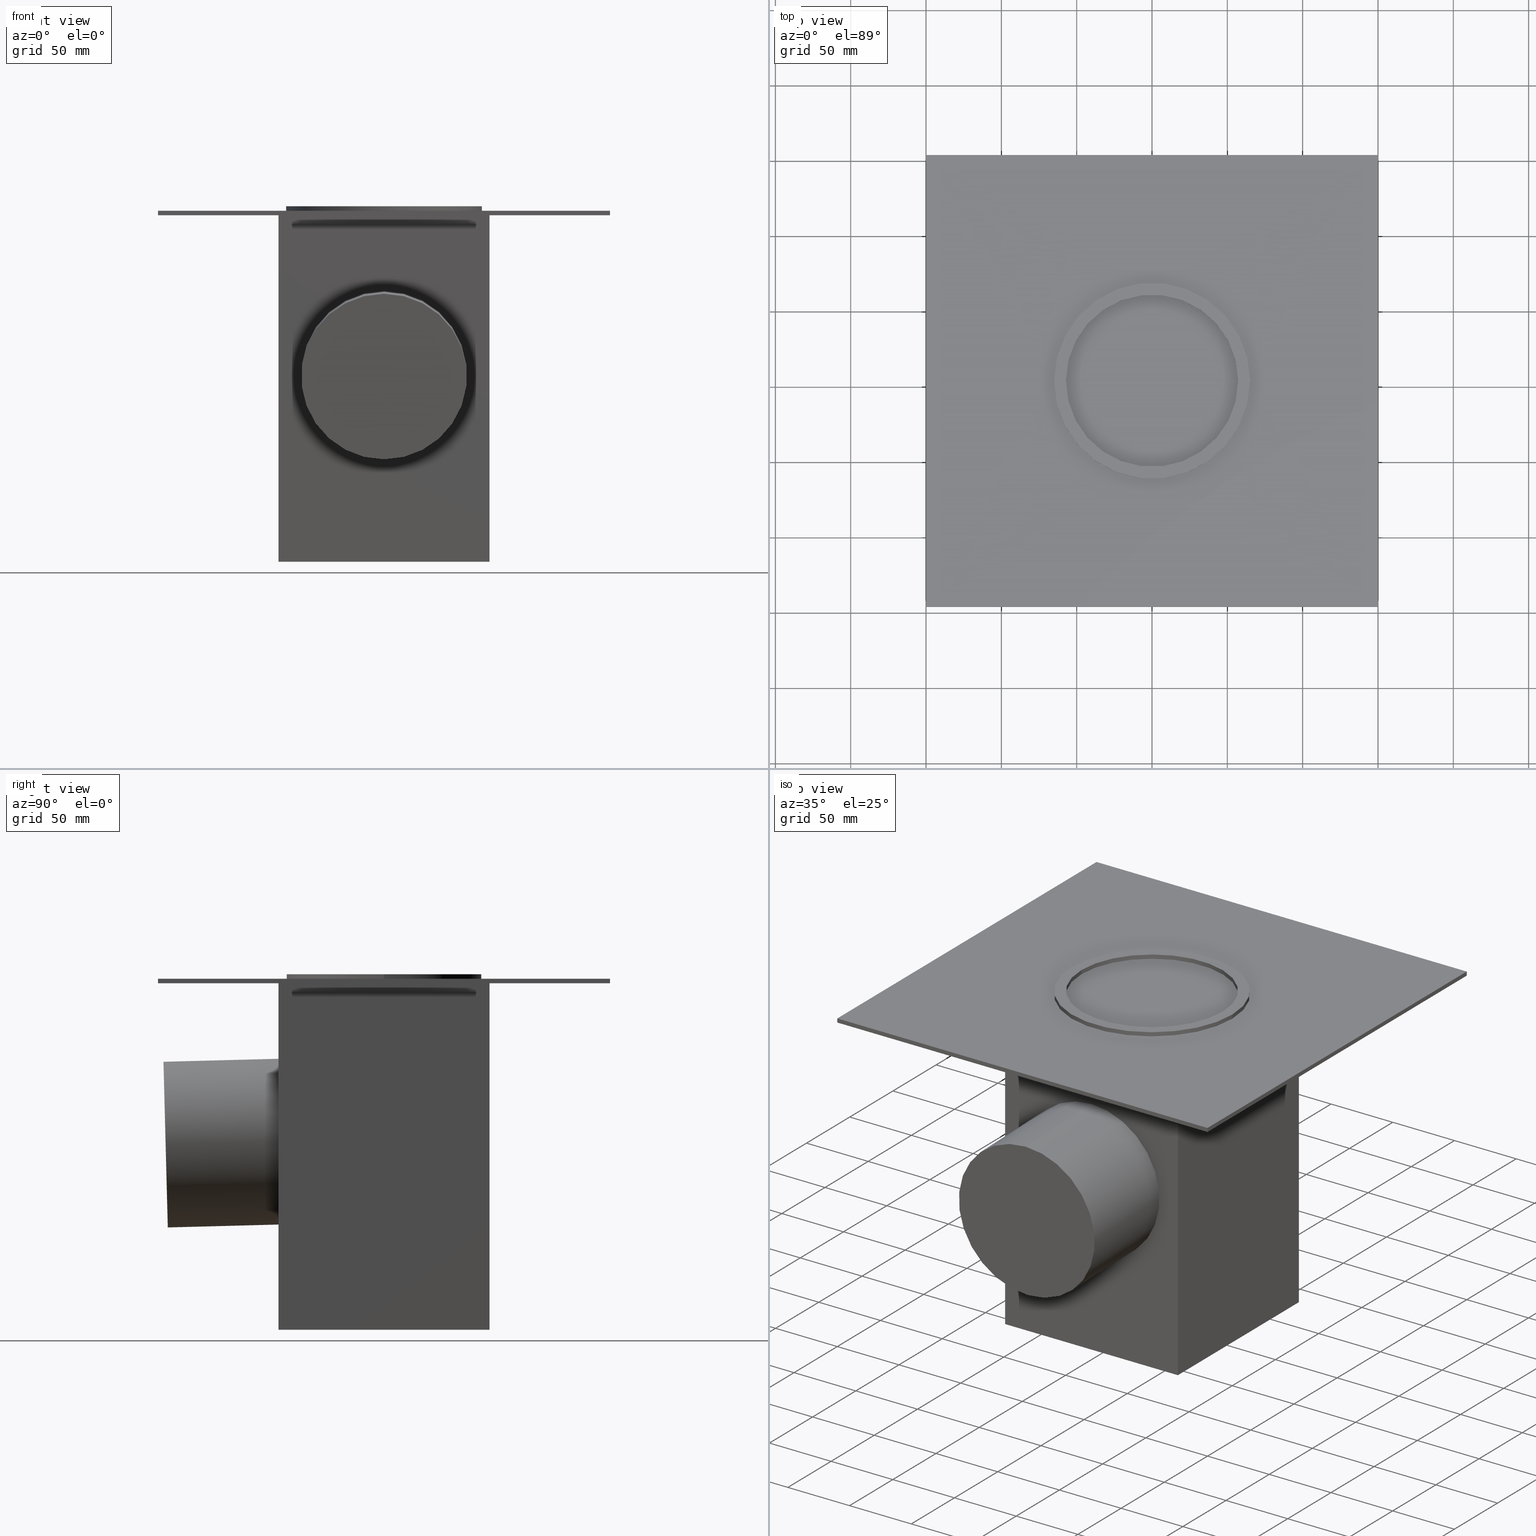
[diagram: canonical four-view strip — front | top / right | iso, engineering-drawing reading convention]
A machine part, canonical four-view strip (front | top / right | iso — engineering-drawing reading convention). The complete STEP part file that produces these views, byte-faithful:
ISO-10303-21;
HEADER;
/* Generated by software containing ST-Developer
 * from STEP Tools, Inc. (www.steptools.com) 
 */

FILE_DESCRIPTION(
/* description */ (''),
/* implementation_level */ '2;1');

FILE_NAME(
/* name */ 
'E:\\Workspace\\resitec\\Packs\\Kategorie\\Sifons zu Wannen und Rinnen
\\RS521.100.s.ipt.step',
/* time_stamp */ '2020-09-18T08:31:05+02:00',
/* author */ ('unternaa'),
/* organization */ (''),
/* preprocessor_version */ 'ST-DEVELOPER v18.1',
/* originating_system */ 'Autodesk Inventor 2020',
/* authorisation */ '');

FILE_SCHEMA (('AUTOMOTIVE_DESIGN { 1 0 10303 214 3 1 1 }'));
ENDSEC;

DATA;
#10=MECHANICAL_DESIGN_GEOMETRIC_PRESENTATION_REPRESENTATION('',(#13,#14,
#15,#16),#666);
#11=SHAPE_REPRESENTATION_RELATIONSHIP('SRR','None',#673,#12);
#12=ADVANCED_BREP_SHAPE_REPRESENTATION('',(#17,#18,#19,#20),#665);
#13=STYLED_ITEM('',(#682),#17);
#14=STYLED_ITEM('',(#682),#18);
#15=STYLED_ITEM('',(#682),#19);
#16=STYLED_ITEM('',(#682),#20);
#17=MANIFOLD_SOLID_BREP('Volumenk\X\F6rper1',#381);
#18=MANIFOLD_SOLID_BREP('Volumenk\X\F6rper2',#382);
#19=MANIFOLD_SOLID_BREP('Volumenk\X\F6rper3',#383);
#20=MANIFOLD_SOLID_BREP('Volumenk\X\F6rper4',#384);
#21=FACE_BOUND('',#70,.T.);
#22=FACE_BOUND('',#72,.T.);
#23=FACE_BOUND('',#90,.T.);
#24=FACE_BOUND('',#92,.T.);
#25=PLANE('',#416);
#26=PLANE('',#417);
#27=PLANE('',#418);
#28=PLANE('',#419);
#29=PLANE('',#420);
#30=PLANE('',#421);
#31=PLANE('',#422);
#32=PLANE('',#423);
#33=PLANE('',#430);
#34=PLANE('',#431);
#35=PLANE('',#438);
#36=PLANE('',#439);
#37=PLANE('',#440);
#38=PLANE('',#441);
#39=PLANE('',#442);
#40=PLANE('',#443);
#41=FACE_OUTER_BOUND('',#65,.T.);
#42=FACE_OUTER_BOUND('',#66,.T.);
#43=FACE_OUTER_BOUND('',#67,.T.);
#44=FACE_OUTER_BOUND('',#68,.T.);
#45=FACE_OUTER_BOUND('',#69,.T.);
#46=FACE_OUTER_BOUND('',#71,.T.);
#47=FACE_OUTER_BOUND('',#73,.T.);
#48=FACE_OUTER_BOUND('',#74,.T.);
#49=FACE_OUTER_BOUND('',#75,.T.);
#50=FACE_OUTER_BOUND('',#76,.T.);
#51=FACE_OUTER_BOUND('',#77,.T.);
#52=FACE_OUTER_BOUND('',#78,.T.);
#53=FACE_OUTER_BOUND('',#79,.T.);
#54=FACE_OUTER_BOUND('',#80,.T.);
#55=FACE_OUTER_BOUND('',#81,.T.);
#56=FACE_OUTER_BOUND('',#82,.T.);
#57=FACE_OUTER_BOUND('',#83,.T.);
#58=FACE_OUTER_BOUND('',#84,.T.);
#59=FACE_OUTER_BOUND('',#85,.T.);
#60=FACE_OUTER_BOUND('',#86,.T.);
#61=FACE_OUTER_BOUND('',#87,.T.);
#62=FACE_OUTER_BOUND('',#88,.T.);
#63=FACE_OUTER_BOUND('',#89,.T.);
#64=FACE_OUTER_BOUND('',#91,.T.);
#65=EDGE_LOOP('',(#253,#254,#255,#256));
#66=EDGE_LOOP('',(#257,#258,#259,#260));
#67=EDGE_LOOP('',(#261,#262,#263,#264));
#68=EDGE_LOOP('',(#265,#266,#267,#268));
#69=EDGE_LOOP('',(#269,#270));
#70=EDGE_LOOP('',(#271,#272));
#71=EDGE_LOOP('',(#273,#274));
#72=EDGE_LOOP('',(#275,#276));
#73=EDGE_LOOP('',(#277,#278,#279,#280));
#74=EDGE_LOOP('',(#281,#282,#283,#284));
#75=EDGE_LOOP('',(#285,#286,#287,#288));
#76=EDGE_LOOP('',(#289,#290,#291,#292));
#77=EDGE_LOOP('',(#293,#294,#295,#296));
#78=EDGE_LOOP('',(#297,#298,#299,#300));
#79=EDGE_LOOP('',(#301,#302,#303,#304));
#80=EDGE_LOOP('',(#305,#306,#307,#308));
#81=EDGE_LOOP('',(#309,#310));
#82=EDGE_LOOP('',(#311,#312));
#83=EDGE_LOOP('',(#313,#314,#315,#316));
#84=EDGE_LOOP('',(#317,#318,#319,#320));
#85=EDGE_LOOP('',(#321,#322,#323,#324));
#86=EDGE_LOOP('',(#325,#326,#327,#328));
#87=EDGE_LOOP('',(#329,#330,#331,#332));
#88=EDGE_LOOP('',(#333,#334,#335,#336));
#89=EDGE_LOOP('',(#337,#338,#339,#340));
#90=EDGE_LOOP('',(#341,#342));
#91=EDGE_LOOP('',(#343,#344,#345,#346));
#92=EDGE_LOOP('',(#347,#348));
#93=LINE('',#564,#125);
#94=LINE('',#567,#126);
#95=LINE('',#576,#127);
#96=LINE('',#579,#128);
#97=LINE('',#588,#129);
#98=LINE('',#590,#130);
#99=LINE('',#592,#131);
#100=LINE('',#593,#132);
#101=LINE('',#596,#133);
#102=LINE('',#598,#134);
#103=LINE('',#599,#135);
#104=LINE('',#602,#136);
#105=LINE('',#604,#137);
#106=LINE('',#605,#138);
#107=LINE('',#607,#139);
#108=LINE('',#608,#140);
#109=LINE('',#616,#141);
#110=LINE('',#619,#142);
#111=LINE('',#630,#143);
#112=LINE('',#633,#144);
#113=LINE('',#640,#145);
#114=LINE('',#642,#146);
#115=LINE('',#644,#147);
#116=LINE('',#645,#148);
#117=LINE('',#648,#149);
#118=LINE('',#650,#150);
#119=LINE('',#651,#151);
#120=LINE('',#654,#152);
#121=LINE('',#656,#153);
#122=LINE('',#657,#154);
#123=LINE('',#659,#155);
#124=LINE('',#660,#156);
#125=VECTOR('',#450,304.8);
#126=VECTOR('',#453,304.8);
#127=VECTOR('',#464,304.8);
#128=VECTOR('',#467,304.8);
#129=VECTOR('',#480,304.8);
#130=VECTOR('',#481,304.8);
#131=VECTOR('',#482,304.8);
#132=VECTOR('',#483,304.8);
#133=VECTOR('',#486,304.8);
#134=VECTOR('',#487,304.8);
#135=VECTOR('',#488,304.8);
#136=VECTOR('',#491,304.8);
#137=VECTOR('',#492,304.8);
#138=VECTOR('',#493,304.8);
#139=VECTOR('',#496,304.8);
#140=VECTOR('',#497,304.8);
#141=VECTOR('',#506,304.8);
#142=VECTOR('',#509,304.8);
#143=VECTOR('',#524,304.8);
#144=VECTOR('',#527,304.8);
#145=VECTOR('',#536,304.8);
#146=VECTOR('',#537,304.8);
#147=VECTOR('',#538,304.8);
#148=VECTOR('',#539,304.8);
#149=VECTOR('',#542,304.8);
#150=VECTOR('',#543,304.8);
#151=VECTOR('',#544,304.8);
#152=VECTOR('',#547,304.8);
#153=VECTOR('',#548,304.8);
#154=VECTOR('',#549,304.8);
#155=VECTOR('',#552,304.8);
#156=VECTOR('',#553,304.8);
#157=CIRCLE('',#405,57.15);
#158=CIRCLE('',#406,57.15);
#159=CIRCLE('',#408,57.15);
#160=CIRCLE('',#409,57.15);
#161=CIRCLE('',#411,65.);
#162=CIRCLE('',#412,65.);
#163=CIRCLE('',#414,65.);
#164=CIRCLE('',#415,65.);
#165=CIRCLE('',#425,55.);
#166=CIRCLE('',#426,55.);
#167=CIRCLE('',#428,55.);
#168=CIRCLE('',#429,55.);
#169=CIRCLE('',#433,64.5);
#170=CIRCLE('',#434,64.5);
#171=CIRCLE('',#436,64.5);
#172=CIRCLE('',#437,64.5);
#173=VERTEX_POINT('',#560);
#174=VERTEX_POINT('',#561);
#175=VERTEX_POINT('',#563);
#176=VERTEX_POINT('',#565);
#177=VERTEX_POINT('',#572);
#178=VERTEX_POINT('',#573);
#179=VERTEX_POINT('',#575);
#180=VERTEX_POINT('',#577);
#181=VERTEX_POINT('',#586);
#182=VERTEX_POINT('',#587);
#183=VERTEX_POINT('',#589);
#184=VERTEX_POINT('',#591);
#185=VERTEX_POINT('',#595);
#186=VERTEX_POINT('',#597);
#187=VERTEX_POINT('',#601);
#188=VERTEX_POINT('',#603);
#189=VERTEX_POINT('',#612);
#190=VERTEX_POINT('',#613);
#191=VERTEX_POINT('',#615);
#192=VERTEX_POINT('',#617);
#193=VERTEX_POINT('',#626);
#194=VERTEX_POINT('',#627);
#195=VERTEX_POINT('',#629);
#196=VERTEX_POINT('',#631);
#197=VERTEX_POINT('',#638);
#198=VERTEX_POINT('',#639);
#199=VERTEX_POINT('',#641);
#200=VERTEX_POINT('',#643);
#201=VERTEX_POINT('',#647);
#202=VERTEX_POINT('',#649);
#203=VERTEX_POINT('',#653);
#204=VERTEX_POINT('',#655);
#205=EDGE_CURVE('',#173,#174,#157,.T.);
#206=EDGE_CURVE('',#175,#173,#93,.T.);
#207=EDGE_CURVE('',#176,#175,#158,.T.);
#208=EDGE_CURVE('',#174,#176,#94,.T.);
#209=EDGE_CURVE('',#174,#173,#159,.T.);
#210=EDGE_CURVE('',#175,#176,#160,.T.);
#211=EDGE_CURVE('',#177,#178,#161,.T.);
#212=EDGE_CURVE('',#179,#177,#95,.T.);
#213=EDGE_CURVE('',#180,#179,#162,.T.);
#214=EDGE_CURVE('',#178,#180,#96,.T.);
#215=EDGE_CURVE('',#178,#177,#163,.T.);
#216=EDGE_CURVE('',#179,#180,#164,.T.);
#217=EDGE_CURVE('',#181,#182,#97,.T.);
#218=EDGE_CURVE('',#183,#181,#98,.T.);
#219=EDGE_CURVE('',#184,#183,#99,.T.);
#220=EDGE_CURVE('',#182,#184,#100,.T.);
#221=EDGE_CURVE('',#185,#181,#101,.T.);
#222=EDGE_CURVE('',#186,#185,#102,.T.);
#223=EDGE_CURVE('',#183,#186,#103,.T.);
#224=EDGE_CURVE('',#187,#185,#104,.T.);
#225=EDGE_CURVE('',#188,#187,#105,.T.);
#226=EDGE_CURVE('',#186,#188,#106,.T.);
#227=EDGE_CURVE('',#182,#187,#107,.T.);
#228=EDGE_CURVE('',#188,#184,#108,.T.);
#229=EDGE_CURVE('',#189,#190,#165,.T.);
#230=EDGE_CURVE('',#191,#189,#109,.T.);
#231=EDGE_CURVE('',#192,#191,#166,.T.);
#232=EDGE_CURVE('',#190,#192,#110,.T.);
#233=EDGE_CURVE('',#190,#189,#167,.T.);
#234=EDGE_CURVE('',#191,#192,#168,.T.);
#235=EDGE_CURVE('',#193,#194,#169,.T.);
#236=EDGE_CURVE('',#195,#193,#111,.T.);
#237=EDGE_CURVE('',#196,#195,#170,.T.);
#238=EDGE_CURVE('',#194,#196,#112,.T.);
#239=EDGE_CURVE('',#194,#193,#171,.T.);
#240=EDGE_CURVE('',#195,#196,#172,.T.);
#241=EDGE_CURVE('',#197,#198,#113,.T.);
#242=EDGE_CURVE('',#199,#197,#114,.T.);
#243=EDGE_CURVE('',#200,#199,#115,.T.);
#244=EDGE_CURVE('',#198,#200,#116,.T.);
#245=EDGE_CURVE('',#201,#197,#117,.T.);
#246=EDGE_CURVE('',#202,#201,#118,.T.);
#247=EDGE_CURVE('',#199,#202,#119,.T.);
#248=EDGE_CURVE('',#203,#201,#120,.T.);
#249=EDGE_CURVE('',#204,#203,#121,.T.);
#250=EDGE_CURVE('',#202,#204,#122,.T.);
#251=EDGE_CURVE('',#198,#203,#123,.T.);
#252=EDGE_CURVE('',#204,#200,#124,.T.);
#253=ORIENTED_EDGE('',*,*,#205,.F.);
#254=ORIENTED_EDGE('',*,*,#206,.F.);
#255=ORIENTED_EDGE('',*,*,#207,.F.);
#256=ORIENTED_EDGE('',*,*,#208,.F.);
#257=ORIENTED_EDGE('',*,*,#209,.F.);
#258=ORIENTED_EDGE('',*,*,#208,.T.);
#259=ORIENTED_EDGE('',*,*,#210,.F.);
#260=ORIENTED_EDGE('',*,*,#206,.T.);
#261=ORIENTED_EDGE('',*,*,#211,.F.);
#262=ORIENTED_EDGE('',*,*,#212,.F.);
#263=ORIENTED_EDGE('',*,*,#213,.F.);
#264=ORIENTED_EDGE('',*,*,#214,.F.);
#265=ORIENTED_EDGE('',*,*,#215,.F.);
#266=ORIENTED_EDGE('',*,*,#214,.T.);
#267=ORIENTED_EDGE('',*,*,#216,.F.);
#268=ORIENTED_EDGE('',*,*,#212,.T.);
#269=ORIENTED_EDGE('',*,*,#213,.T.);
#270=ORIENTED_EDGE('',*,*,#216,.T.);
#271=ORIENTED_EDGE('',*,*,#207,.T.);
#272=ORIENTED_EDGE('',*,*,#210,.T.);
#273=ORIENTED_EDGE('',*,*,#215,.T.);
#274=ORIENTED_EDGE('',*,*,#211,.T.);
#275=ORIENTED_EDGE('',*,*,#209,.T.);
#276=ORIENTED_EDGE('',*,*,#205,.T.);
#277=ORIENTED_EDGE('',*,*,#217,.F.);
#278=ORIENTED_EDGE('',*,*,#218,.F.);
#279=ORIENTED_EDGE('',*,*,#219,.F.);
#280=ORIENTED_EDGE('',*,*,#220,.F.);
#281=ORIENTED_EDGE('',*,*,#221,.F.);
#282=ORIENTED_EDGE('',*,*,#222,.F.);
#283=ORIENTED_EDGE('',*,*,#223,.F.);
#284=ORIENTED_EDGE('',*,*,#218,.T.);
#285=ORIENTED_EDGE('',*,*,#224,.F.);
#286=ORIENTED_EDGE('',*,*,#225,.F.);
#287=ORIENTED_EDGE('',*,*,#226,.F.);
#288=ORIENTED_EDGE('',*,*,#222,.T.);
#289=ORIENTED_EDGE('',*,*,#227,.F.);
#290=ORIENTED_EDGE('',*,*,#220,.T.);
#291=ORIENTED_EDGE('',*,*,#228,.F.);
#292=ORIENTED_EDGE('',*,*,#225,.T.);
#293=ORIENTED_EDGE('',*,*,#219,.T.);
#294=ORIENTED_EDGE('',*,*,#223,.T.);
#295=ORIENTED_EDGE('',*,*,#226,.T.);
#296=ORIENTED_EDGE('',*,*,#228,.T.);
#297=ORIENTED_EDGE('',*,*,#227,.T.);
#298=ORIENTED_EDGE('',*,*,#224,.T.);
#299=ORIENTED_EDGE('',*,*,#221,.T.);
#300=ORIENTED_EDGE('',*,*,#217,.T.);
#301=ORIENTED_EDGE('',*,*,#229,.F.);
#302=ORIENTED_EDGE('',*,*,#230,.F.);
#303=ORIENTED_EDGE('',*,*,#231,.F.);
#304=ORIENTED_EDGE('',*,*,#232,.F.);
#305=ORIENTED_EDGE('',*,*,#233,.F.);
#306=ORIENTED_EDGE('',*,*,#232,.T.);
#307=ORIENTED_EDGE('',*,*,#234,.F.);
#308=ORIENTED_EDGE('',*,*,#230,.T.);
#309=ORIENTED_EDGE('',*,*,#231,.T.);
#310=ORIENTED_EDGE('',*,*,#234,.T.);
#311=ORIENTED_EDGE('',*,*,#233,.T.);
#312=ORIENTED_EDGE('',*,*,#229,.T.);
#313=ORIENTED_EDGE('',*,*,#235,.F.);
#314=ORIENTED_EDGE('',*,*,#236,.F.);
#315=ORIENTED_EDGE('',*,*,#237,.F.);
#316=ORIENTED_EDGE('',*,*,#238,.F.);
#317=ORIENTED_EDGE('',*,*,#239,.F.);
#318=ORIENTED_EDGE('',*,*,#238,.T.);
#319=ORIENTED_EDGE('',*,*,#240,.F.);
#320=ORIENTED_EDGE('',*,*,#236,.T.);
#321=ORIENTED_EDGE('',*,*,#241,.F.);
#322=ORIENTED_EDGE('',*,*,#242,.F.);
#323=ORIENTED_EDGE('',*,*,#243,.F.);
#324=ORIENTED_EDGE('',*,*,#244,.F.);
#325=ORIENTED_EDGE('',*,*,#245,.F.);
#326=ORIENTED_EDGE('',*,*,#246,.F.);
#327=ORIENTED_EDGE('',*,*,#247,.F.);
#328=ORIENTED_EDGE('',*,*,#242,.T.);
#329=ORIENTED_EDGE('',*,*,#248,.F.);
#330=ORIENTED_EDGE('',*,*,#249,.F.);
#331=ORIENTED_EDGE('',*,*,#250,.F.);
#332=ORIENTED_EDGE('',*,*,#246,.T.);
#333=ORIENTED_EDGE('',*,*,#251,.F.);
#334=ORIENTED_EDGE('',*,*,#244,.T.);
#335=ORIENTED_EDGE('',*,*,#252,.F.);
#336=ORIENTED_EDGE('',*,*,#249,.T.);
#337=ORIENTED_EDGE('',*,*,#243,.T.);
#338=ORIENTED_EDGE('',*,*,#247,.T.);
#339=ORIENTED_EDGE('',*,*,#250,.T.);
#340=ORIENTED_EDGE('',*,*,#252,.T.);
#341=ORIENTED_EDGE('',*,*,#237,.T.);
#342=ORIENTED_EDGE('',*,*,#240,.T.);
#343=ORIENTED_EDGE('',*,*,#251,.T.);
#344=ORIENTED_EDGE('',*,*,#248,.T.);
#345=ORIENTED_EDGE('',*,*,#245,.T.);
#346=ORIENTED_EDGE('',*,*,#241,.T.);
#347=ORIENTED_EDGE('',*,*,#239,.T.);
#348=ORIENTED_EDGE('',*,*,#235,.T.);
#349=CYLINDRICAL_SURFACE('',#404,57.15);
#350=CYLINDRICAL_SURFACE('',#407,57.15);
#351=CYLINDRICAL_SURFACE('',#410,65.);
#352=CYLINDRICAL_SURFACE('',#413,65.);
#353=CYLINDRICAL_SURFACE('',#424,55.);
#354=CYLINDRICAL_SURFACE('',#427,55.);
#355=CYLINDRICAL_SURFACE('',#432,64.5);
#356=CYLINDRICAL_SURFACE('',#435,64.5);
#357=ADVANCED_FACE('',(#41),#349,.F.);
#358=ADVANCED_FACE('',(#42),#350,.F.);
#359=ADVANCED_FACE('',(#43),#351,.T.);
#360=ADVANCED_FACE('',(#44),#352,.T.);
#361=ADVANCED_FACE('',(#45,#21),#25,.T.);
#362=ADVANCED_FACE('',(#46,#22),#26,.T.);
#363=ADVANCED_FACE('',(#47),#27,.T.);
#364=ADVANCED_FACE('',(#48),#28,.T.);
#365=ADVANCED_FACE('',(#49),#29,.T.);
#366=ADVANCED_FACE('',(#50),#30,.T.);
#367=ADVANCED_FACE('',(#51),#31,.T.);
#368=ADVANCED_FACE('',(#52),#32,.T.);
#369=ADVANCED_FACE('',(#53),#353,.T.);
#370=ADVANCED_FACE('',(#54),#354,.T.);
#371=ADVANCED_FACE('',(#55),#33,.T.);
#372=ADVANCED_FACE('',(#56),#34,.T.);
#373=ADVANCED_FACE('',(#57),#355,.F.);
#374=ADVANCED_FACE('',(#58),#356,.F.);
#375=ADVANCED_FACE('',(#59),#35,.T.);
#376=ADVANCED_FACE('',(#60),#36,.T.);
#377=ADVANCED_FACE('',(#61),#37,.T.);
#378=ADVANCED_FACE('',(#62),#38,.T.);
#379=ADVANCED_FACE('',(#63,#23),#39,.T.);
#380=ADVANCED_FACE('',(#64,#24),#40,.T.);
#381=CLOSED_SHELL('',(#357,#358,#359,#360,#361,#362));
#382=CLOSED_SHELL('',(#363,#364,#365,#366,#367,#368));
#383=CLOSED_SHELL('',(#369,#370,#371,#372));
#384=CLOSED_SHELL('',(#373,#374,#375,#376,#377,#378,#379,#380));
#385=DERIVED_UNIT_ELEMENT(#387,1.);
#386=DERIVED_UNIT_ELEMENT(#668,3.);
#387=(
MASS_UNIT()
NAMED_UNIT(*)
SI_UNIT($,.GRAM.)
);
#388=DERIVED_UNIT((#385,#386));
#389=MEASURE_REPRESENTATION_ITEM('density measure',
POSITIVE_RATIO_MEASURE(1.),#388);
#390=PROPERTY_DEFINITION_REPRESENTATION(#395,#392);
#391=PROPERTY_DEFINITION_REPRESENTATION(#396,#393);
#392=REPRESENTATION('material name',(#394),#665);
#393=REPRESENTATION('density',(#389),#665);
#394=DESCRIPTIVE_REPRESENTATION_ITEM('Generisch','Generisch');
#395=PROPERTY_DEFINITION('material property','material name',#675);
#396=PROPERTY_DEFINITION('material property','density of part',#675);
#397=DATE_TIME_ROLE('creation_date');
#398=APPLIED_DATE_AND_TIME_ASSIGNMENT(#399,#397,(#675));
#399=DATE_AND_TIME(#400,#401);
#400=CALENDAR_DATE(2020,18,9);
#401=LOCAL_TIME(6,16,17.,#402);
#402=COORDINATED_UNIVERSAL_TIME_OFFSET(0,0,.BEHIND.);
#403=AXIS2_PLACEMENT_3D('placement',#558,#444,#445);
#404=AXIS2_PLACEMENT_3D('',#559,#446,#447);
#405=AXIS2_PLACEMENT_3D('',#562,#448,#449);
#406=AXIS2_PLACEMENT_3D('',#566,#451,#452);
#407=AXIS2_PLACEMENT_3D('',#568,#454,#455);
#408=AXIS2_PLACEMENT_3D('',#569,#456,#457);
#409=AXIS2_PLACEMENT_3D('',#570,#458,#459);
#410=AXIS2_PLACEMENT_3D('',#571,#460,#461);
#411=AXIS2_PLACEMENT_3D('',#574,#462,#463);
#412=AXIS2_PLACEMENT_3D('',#578,#465,#466);
#413=AXIS2_PLACEMENT_3D('',#580,#468,#469);
#414=AXIS2_PLACEMENT_3D('',#581,#470,#471);
#415=AXIS2_PLACEMENT_3D('',#582,#472,#473);
#416=AXIS2_PLACEMENT_3D('',#583,#474,#475);
#417=AXIS2_PLACEMENT_3D('',#584,#476,#477);
#418=AXIS2_PLACEMENT_3D('',#585,#478,#479);
#419=AXIS2_PLACEMENT_3D('',#594,#484,#485);
#420=AXIS2_PLACEMENT_3D('',#600,#489,#490);
#421=AXIS2_PLACEMENT_3D('',#606,#494,#495);
#422=AXIS2_PLACEMENT_3D('',#609,#498,#499);
#423=AXIS2_PLACEMENT_3D('',#610,#500,#501);
#424=AXIS2_PLACEMENT_3D('',#611,#502,#503);
#425=AXIS2_PLACEMENT_3D('',#614,#504,#505);
#426=AXIS2_PLACEMENT_3D('',#618,#507,#508);
#427=AXIS2_PLACEMENT_3D('',#620,#510,#511);
#428=AXIS2_PLACEMENT_3D('',#621,#512,#513);
#429=AXIS2_PLACEMENT_3D('',#622,#514,#515);
#430=AXIS2_PLACEMENT_3D('',#623,#516,#517);
#431=AXIS2_PLACEMENT_3D('',#624,#518,#519);
#432=AXIS2_PLACEMENT_3D('',#625,#520,#521);
#433=AXIS2_PLACEMENT_3D('',#628,#522,#523);
#434=AXIS2_PLACEMENT_3D('',#632,#525,#526);
#435=AXIS2_PLACEMENT_3D('',#634,#528,#529);
#436=AXIS2_PLACEMENT_3D('',#635,#530,#531);
#437=AXIS2_PLACEMENT_3D('',#636,#532,#533);
#438=AXIS2_PLACEMENT_3D('',#637,#534,#535);
#439=AXIS2_PLACEMENT_3D('',#646,#540,#541);
#440=AXIS2_PLACEMENT_3D('',#652,#545,#546);
#441=AXIS2_PLACEMENT_3D('',#658,#550,#551);
#442=AXIS2_PLACEMENT_3D('',#661,#554,#555);
#443=AXIS2_PLACEMENT_3D('',#662,#556,#557);
#444=DIRECTION('axis',(0.,0.,1.));
#445=DIRECTION('refdir',(1.,0.,0.));
#446=DIRECTION('center_axis',(0.,0.,-1.));
#447=DIRECTION('ref_axis',(1.,1.61554457443259E-15,0.));
#448=DIRECTION('center_axis',(0.,0.,-1.));
#449=DIRECTION('ref_axis',(1.,1.61554457443259E-15,0.));
#450=DIRECTION('',(0.,0.,1.));
#451=DIRECTION('center_axis',(0.,0.,1.));
#452=DIRECTION('ref_axis',(1.,1.61554457443259E-15,0.));
#453=DIRECTION('',(0.,0.,-1.));
#454=DIRECTION('center_axis',(0.,0.,-1.));
#455=DIRECTION('ref_axis',(1.,1.61554457443259E-15,0.));
#456=DIRECTION('center_axis',(0.,0.,-1.));
#457=DIRECTION('ref_axis',(1.,1.61554457443259E-15,0.));
#458=DIRECTION('center_axis',(0.,0.,1.));
#459=DIRECTION('ref_axis',(1.,1.61554457443259E-15,0.));
#460=DIRECTION('center_axis',(0.,0.,1.));
#461=DIRECTION('ref_axis',(1.,-1.61554457443259E-15,0.));
#462=DIRECTION('center_axis',(0.,0.,1.));
#463=DIRECTION('ref_axis',(1.,-1.61554457443259E-15,0.));
#464=DIRECTION('',(0.,0.,1.));
#465=DIRECTION('center_axis',(0.,0.,-1.));
#466=DIRECTION('ref_axis',(1.,-1.61554457443259E-15,0.));
#467=DIRECTION('',(0.,0.,-1.));
#468=DIRECTION('center_axis',(0.,0.,1.));
#469=DIRECTION('ref_axis',(1.,-1.61554457443259E-15,0.));
#470=DIRECTION('center_axis',(0.,0.,1.));
#471=DIRECTION('ref_axis',(1.,-1.61554457443259E-15,0.));
#472=DIRECTION('center_axis',(0.,0.,-1.));
#473=DIRECTION('ref_axis',(1.,-1.61554457443259E-15,0.));
#474=DIRECTION('center_axis',(0.,0.,-1.));
#475=DIRECTION('ref_axis',(0.,-1.,0.));
#476=DIRECTION('center_axis',(0.,0.,1.));
#477=DIRECTION('ref_axis',(0.,1.,0.));
#478=DIRECTION('center_axis',(1.,6.0427853197455E-17,0.));
#479=DIRECTION('ref_axis',(0.,0.,-1.));
#480=DIRECTION('',(0.,1.,0.));
#481=DIRECTION('',(0.,0.,1.));
#482=DIRECTION('',(0.,-1.,0.));
#483=DIRECTION('',(0.,0.,-1.));
#484=DIRECTION('center_axis',(-6.0427853197455E-17,-1.,0.));
#485=DIRECTION('ref_axis',(0.,0.,-1.));
#486=DIRECTION('',(1.,0.,0.));
#487=DIRECTION('',(0.,0.,1.));
#488=DIRECTION('',(-1.,0.,0.));
#489=DIRECTION('center_axis',(-1.,-6.0427853197455E-17,0.));
#490=DIRECTION('ref_axis',(0.,0.,-1.));
#491=DIRECTION('',(6.0427853197455E-17,-1.,0.));
#492=DIRECTION('',(0.,0.,1.));
#493=DIRECTION('',(-6.0427853197455E-17,1.,0.));
#494=DIRECTION('center_axis',(6.0427853197455E-17,1.,0.));
#495=DIRECTION('ref_axis',(0.,0.,-1.));
#496=DIRECTION('',(-1.,6.0427853197455E-17,0.));
#497=DIRECTION('',(1.,-6.0427853197455E-17,0.));
#498=DIRECTION('center_axis',(0.,0.,-1.));
#499=DIRECTION('ref_axis',(1.,-6.0427853197455E-17,0.));
#500=DIRECTION('center_axis',(0.,0.,1.));
#501=DIRECTION('ref_axis',(-1.,6.0427853197455E-17,0.));
#502=DIRECTION('center_axis',(0.,0.999657324975557,0.0261769483078731));
#503=DIRECTION('ref_axis',(-1.61554457443259E-15,-0.0261769483078731,0.999657324975557));
#504=DIRECTION('center_axis',(0.,0.999657324975557,0.0261769483078731));
#505=DIRECTION('ref_axis',(-1.61554457443259E-15,-0.0261769483078731,0.999657324975557));
#506=DIRECTION('',(0.,0.999657324975557,0.0261769483078731));
#507=DIRECTION('center_axis',(0.,-0.999657324975557,-0.0261769483078731));
#508=DIRECTION('ref_axis',(-1.61554457443259E-15,-0.0261769483078731,0.999657324975557));
#509=DIRECTION('',(0.,-0.999657324975557,-0.0261769483078729));
#510=DIRECTION('center_axis',(0.,0.999657324975557,0.0261769483078731));
#511=DIRECTION('ref_axis',(-1.61554457443259E-15,-0.0261769483078731,0.999657324975557));
#512=DIRECTION('center_axis',(0.,0.999657324975557,0.0261769483078731));
#513=DIRECTION('ref_axis',(-1.61554457443259E-15,-0.0261769483078731,0.999657324975557));
#514=DIRECTION('center_axis',(0.,-0.999657324975557,-0.0261769483078731));
#515=DIRECTION('ref_axis',(-1.61554457443259E-15,-0.0261769483078731,0.999657324975557));
#516=DIRECTION('center_axis',(0.,-0.999657324975557,-0.0261769483078731));
#517=DIRECTION('ref_axis',(-1.,0.,0.));
#518=DIRECTION('center_axis',(0.,0.999657324975557,0.0261769483078731));
#519=DIRECTION('ref_axis',(1.,0.,0.));
#520=DIRECTION('center_axis',(0.,0.,-1.));
#521=DIRECTION('ref_axis',(1.,1.61554457443259E-15,0.));
#522=DIRECTION('center_axis',(0.,0.,-1.));
#523=DIRECTION('ref_axis',(1.,1.61554457443259E-15,0.));
#524=DIRECTION('',(0.,0.,1.));
#525=DIRECTION('center_axis',(0.,0.,1.));
#526=DIRECTION('ref_axis',(1.,1.61554457443259E-15,0.));
#527=DIRECTION('',(0.,0.,-1.));
#528=DIRECTION('center_axis',(0.,0.,-1.));
#529=DIRECTION('ref_axis',(1.,1.61554457443259E-15,0.));
#530=DIRECTION('center_axis',(0.,0.,-1.));
#531=DIRECTION('ref_axis',(1.,1.61554457443259E-15,0.));
#532=DIRECTION('center_axis',(0.,0.,1.));
#533=DIRECTION('ref_axis',(1.,1.61554457443259E-15,0.));
#534=DIRECTION('center_axis',(1.,5.63993296509578E-17,0.));
#535=DIRECTION('ref_axis',(0.,0.,-1.));
#536=DIRECTION('',(0.,1.,0.));
#537=DIRECTION('',(0.,0.,1.));
#538=DIRECTION('',(0.,-1.,0.));
#539=DIRECTION('',(0.,0.,-1.));
#540=DIRECTION('center_axis',(0.,-1.,0.));
#541=DIRECTION('ref_axis',(0.,0.,-1.));
#542=DIRECTION('',(1.,0.,0.));
#543=DIRECTION('',(0.,0.,1.));
#544=DIRECTION('',(-1.,0.,0.));
#545=DIRECTION('center_axis',(-1.,-5.63993296509578E-17,0.));
#546=DIRECTION('ref_axis',(0.,0.,-1.));
#547=DIRECTION('',(5.63993296509578E-17,-1.,0.));
#548=DIRECTION('',(0.,0.,1.));
#549=DIRECTION('',(-5.63993296509578E-17,1.,0.));
#550=DIRECTION('center_axis',(0.,1.,0.));
#551=DIRECTION('ref_axis',(0.,0.,-1.));
#552=DIRECTION('',(-1.,0.,0.));
#553=DIRECTION('',(1.,0.,0.));
#554=DIRECTION('center_axis',(0.,0.,-1.));
#555=DIRECTION('ref_axis',(1.,0.,0.));
#556=DIRECTION('center_axis',(0.,0.,1.));
#557=DIRECTION('ref_axis',(-1.,0.,0.));
#558=CARTESIAN_POINT('',(0.,0.,0.));
#559=CARTESIAN_POINT('Origin',(0.,1.02249314866983E-13,0.));
#560=CARTESIAN_POINT('',(57.15,5.13131780325232E-13,6.00000000000062));
#561=CARTESIAN_POINT('',(-57.15,9.92094243816027E-15,6.00000000000062));
#562=CARTESIAN_POINT('Origin',(0.,1.02249314866983E-13,6.00000000000062));
#563=CARTESIAN_POINT('',(57.15,1.94577687295805E-13,3.00000000000031));
#564=CARTESIAN_POINT('',(57.15,5.63891177011094E-13,3.00000000000031));
#565=CARTESIAN_POINT('',(-57.15,3.53006407810913E-14,3.00000000000031));
#566=CARTESIAN_POINT('Origin',(0.,1.02249314866983E-13,3.00000000000031));
#567=CARTESIAN_POINT('',(-57.15,3.53006407810913E-14,6.00000000000062));
#568=CARTESIAN_POINT('Origin',(0.,1.02249314866983E-13,0.));
#569=CARTESIAN_POINT('Origin',(0.,1.02249314866983E-13,6.00000000000062));
#570=CARTESIAN_POINT('Origin',(0.,1.02249314866983E-13,3.00000000000031));
#571=CARTESIAN_POINT('Origin',(0.,3.01703059495834E-13,3.00000000000031));
#572=CARTESIAN_POINT('',(65.,-1.65617329914249E-13,6.00000000000062));
#573=CARTESIAN_POINT('',(-65.,4.06713456833952E-13,6.00000000000062));
#574=CARTESIAN_POINT('Origin',(0.,3.01703059495834E-13,6.00000000000062));
#575=CARTESIAN_POINT('',(65.,1.96692662157716E-13,3.00000000000031));
#576=CARTESIAN_POINT('',(65.,-2.23348927194757E-13,3.00000000000031));
#577=CARTESIAN_POINT('',(-65.,3.77847658193698E-13,3.00000000000031));
#578=CARTESIAN_POINT('Origin',(0.,3.01703059495834E-13,3.00000000000031));
#579=CARTESIAN_POINT('',(-65.,3.77847658193698E-13,6.00000000000062));
#580=CARTESIAN_POINT('Origin',(0.,3.01703059495834E-13,3.00000000000031));
#581=CARTESIAN_POINT('Origin',(0.,3.01703059495834E-13,6.00000000000062));
#582=CARTESIAN_POINT('Origin',(0.,3.01703059495834E-13,3.00000000000031));
#583=CARTESIAN_POINT('Origin',(65.,1.96692662157716E-13,3.00000000000031));
#584=CARTESIAN_POINT('Origin',(65.,1.96692662157716E-13,6.00000000000062));
#585=CARTESIAN_POINT('Origin',(70.0000000000001,-69.9999999999996,0.));
#586=CARTESIAN_POINT('',(70.0000000000001,-69.9999999999996,0.));
#587=CARTESIAN_POINT('',(70.0000000000001,70.0000000000003,0.));
#588=CARTESIAN_POINT('',(70.0000000000001,-69.9999999999996,0.));
#589=CARTESIAN_POINT('',(70.0000000000001,-69.9999999999996,-230.));
#590=CARTESIAN_POINT('',(70.0000000000001,-69.9999999999996,-230.));
#591=CARTESIAN_POINT('',(70.0000000000001,70.0000000000003,-230.));
#592=CARTESIAN_POINT('',(70.0000000000001,70.0000000000003,-230.));
#593=CARTESIAN_POINT('',(70.0000000000001,70.0000000000003,0.));
#594=CARTESIAN_POINT('Origin',(-69.9999999999998,-69.9999999999996,0.));
#595=CARTESIAN_POINT('',(-69.9999999999998,-69.9999999999996,0.));
#596=CARTESIAN_POINT('',(-69.9999999999998,-69.9999999999996,0.));
#597=CARTESIAN_POINT('',(-69.9999999999998,-69.9999999999996,-230.));
#598=CARTESIAN_POINT('',(-69.9999999999998,-69.9999999999996,-230.));
#599=CARTESIAN_POINT('',(70.0000000000001,-69.9999999999996,-230.));
#600=CARTESIAN_POINT('Origin',(-69.9999999999998,70.0000000000003,0.));
#601=CARTESIAN_POINT('',(-69.9999999999998,70.0000000000003,0.));
#602=CARTESIAN_POINT('',(-69.9999999999998,70.0000000000003,0.));
#603=CARTESIAN_POINT('',(-69.9999999999998,70.0000000000003,-230.));
#604=CARTESIAN_POINT('',(-69.9999999999998,70.0000000000003,-230.));
#605=CARTESIAN_POINT('',(-69.9999999999998,-69.9999999999996,-230.));
#606=CARTESIAN_POINT('Origin',(70.0000000000001,70.0000000000003,0.));
#607=CARTESIAN_POINT('',(70.0000000000001,70.0000000000003,0.));
#608=CARTESIAN_POINT('',(-69.9999999999998,70.0000000000003,-230.));
#609=CARTESIAN_POINT('Origin',(-69.9999999999998,70.0000000000003,-230.));
#610=CARTESIAN_POINT('Origin',(-69.9999999999998,70.0000000000003,0.));
#611=CARTESIAN_POINT('Origin',(8.88549515937923E-14,-144.945162598762,-107.094155864601));
#612=CARTESIAN_POINT('',(-3.06569993291662E-13,-66.4123087576502,-50.0188471263153));
#613=CARTESIAN_POINT('',(1.77709903187585E-13,-63.5328444437841,-159.981152873627));
#614=CARTESIAN_POINT('Origin',(8.88549515937923E-14,-64.9725766007171,-104.999999999971));
#615=CARTESIAN_POINT('',(0.,-146.384894755695,-52.1130029909452));
#616=CARTESIAN_POINT('',(-3.55419806375169E-13,-146.384894755695,-52.1130029909452));
#617=CARTESIAN_POINT('',(1.53284996645831E-13,-143.505430441829,-162.075308738256));
#618=CARTESIAN_POINT('Origin',(8.88549515937923E-14,-144.945162598762,-107.094155864601));
#619=CARTESIAN_POINT('',(1.53284996645831E-13,-63.5328444437841,-159.981152873627));
#620=CARTESIAN_POINT('Origin',(8.88549515937923E-14,-144.945162598762,-107.094155864601));
#621=CARTESIAN_POINT('Origin',(8.88549515937923E-14,-64.9725766007171,-104.999999999971));
#622=CARTESIAN_POINT('Origin',(8.88549515937923E-14,-144.945162598762,-107.094155864601));
#623=CARTESIAN_POINT('Origin',(0.,-146.384894755695,-52.1130029909452));
#624=CARTESIAN_POINT('Origin',(0.,-66.4123087576502,-50.0188471263153));
#625=CARTESIAN_POINT('Origin',(0.,9.03800409857782E-14,0.));
#626=CARTESIAN_POINT('',(64.5,5.58353363544484E-13,3.00000000000016));
#627=CARTESIAN_POINT('',(-64.5,-1.69197988952874E-14,3.00000000000016));
#628=CARTESIAN_POINT('Origin',(0.,9.03800409857782E-14,3.00000000000016));
#629=CARTESIAN_POINT('',(64.5,2.03037586743449E-13,0.));
#630=CARTESIAN_POINT('',(64.5,1.01240572273489E-12,0.));
#631=CARTESIAN_POINT('',(-64.5,1.69197988952874E-14,0.));
#632=CARTESIAN_POINT('Origin',(0.,9.03800409857782E-14,0.));
#633=CARTESIAN_POINT('',(-64.5,1.48211699702054E-14,3.00000000000016));
#634=CARTESIAN_POINT('Origin',(0.,9.03800409857782E-14,0.));
#635=CARTESIAN_POINT('Origin',(0.,9.03800409857782E-14,3.00000000000016));
#636=CARTESIAN_POINT('Origin',(0.,9.03800409857782E-14,0.));
#637=CARTESIAN_POINT('Origin',(150.,-150.,3.00000000000016));
#638=CARTESIAN_POINT('',(150.,-150.,3.00000000000016));
#639=CARTESIAN_POINT('',(150.,150.,3.00000000000016));
#640=CARTESIAN_POINT('',(150.,-150.,3.00000000000016));
#641=CARTESIAN_POINT('',(150.,-150.,0.));
#642=CARTESIAN_POINT('',(150.,-150.,0.));
#643=CARTESIAN_POINT('',(150.,150.,0.));
#644=CARTESIAN_POINT('',(150.,150.,0.));
#645=CARTESIAN_POINT('',(150.,150.,3.00000000000016));
#646=CARTESIAN_POINT('Origin',(-150.,-150.,3.00000000000016));
#647=CARTESIAN_POINT('',(-150.,-150.,3.00000000000016));
#648=CARTESIAN_POINT('',(-150.,-150.,3.00000000000016));
#649=CARTESIAN_POINT('',(-150.,-150.,0.));
#650=CARTESIAN_POINT('',(-150.,-150.,0.));
#651=CARTESIAN_POINT('',(150.,-150.,0.));
#652=CARTESIAN_POINT('Origin',(-150.,150.,3.00000000000016));
#653=CARTESIAN_POINT('',(-150.,150.,3.00000000000016));
#654=CARTESIAN_POINT('',(-150.,150.,3.00000000000016));
#655=CARTESIAN_POINT('',(-150.,150.,0.));
#656=CARTESIAN_POINT('',(-150.,150.,0.));
#657=CARTESIAN_POINT('',(-150.,-150.,0.));
#658=CARTESIAN_POINT('Origin',(150.,150.,3.00000000000016));
#659=CARTESIAN_POINT('',(150.,150.,3.00000000000016));
#660=CARTESIAN_POINT('',(-150.,150.,0.));
#661=CARTESIAN_POINT('Origin',(-150.,150.,0.));
#662=CARTESIAN_POINT('Origin',(-150.,150.,3.00000000000016));
#663=UNCERTAINTY_MEASURE_WITH_UNIT(LENGTH_MEASURE(0.01),#667,
'DISTANCE_ACCURACY_VALUE',
'Maximum model space distance between geometric entities at asserted c
onnectivities');
#664=UNCERTAINTY_MEASURE_WITH_UNIT(LENGTH_MEASURE(0.01),#667,
'DISTANCE_ACCURACY_VALUE',
'Maximum model space distance between geometric entities at asserted c
onnectivities');
#665=(
GEOMETRIC_REPRESENTATION_CONTEXT(3)
GLOBAL_UNCERTAINTY_ASSIGNED_CONTEXT((#663))
GLOBAL_UNIT_ASSIGNED_CONTEXT((#667,#669,#670))
REPRESENTATION_CONTEXT('','3D')
);
#666=(
GEOMETRIC_REPRESENTATION_CONTEXT(3)
GLOBAL_UNCERTAINTY_ASSIGNED_CONTEXT((#664))
GLOBAL_UNIT_ASSIGNED_CONTEXT((#667,#669,#670))
REPRESENTATION_CONTEXT('','3D')
);
#667=(
LENGTH_UNIT()
NAMED_UNIT(*)
SI_UNIT(.MILLI.,.METRE.)
);
#668=(
LENGTH_UNIT()
NAMED_UNIT(*)
SI_UNIT(.CENTI.,.METRE.)
);
#669=(
NAMED_UNIT(*)
PLANE_ANGLE_UNIT()
SI_UNIT($,.RADIAN.)
);
#670=(
NAMED_UNIT(*)
SI_UNIT($,.STERADIAN.)
SOLID_ANGLE_UNIT()
);
#671=SHAPE_DEFINITION_REPRESENTATION(#672,#673);
#672=PRODUCT_DEFINITION_SHAPE('',$,#675);
#673=SHAPE_REPRESENTATION('',(#403),#665);
#674=PRODUCT_DEFINITION_CONTEXT('part definition',#679,'design');
#675=PRODUCT_DEFINITION('RS521.100.s','RS521.100.s',#676,#674);
#676=PRODUCT_DEFINITION_FORMATION('',$,#681);
#677=PRODUCT_RELATED_PRODUCT_CATEGORY('RS521.100.s','RS521.100.s',(#681));
#678=APPLICATION_PROTOCOL_DEFINITION('international standard',
'automotive_design',2009,#679);
#679=APPLICATION_CONTEXT(
'Core Data for Automotive Mechanical Design Process');
#680=PRODUCT_CONTEXT('part definition',#679,'mechanical');
#681=PRODUCT('RS521.100.s','RS521.100.s',$,(#680));
#682=PRESENTATION_STYLE_ASSIGNMENT((#683));
#683=SURFACE_STYLE_USAGE(.BOTH.,#686);
#684=SURFACE_STYLE_RENDERING_WITH_PROPERTIES($,#690,(#685));
#685=SURFACE_STYLE_TRANSPARENT(0.);
#686=SURFACE_SIDE_STYLE('',(#687,#684));
#687=SURFACE_STYLE_FILL_AREA(#688);
#688=FILL_AREA_STYLE('',(#689));
#689=FILL_AREA_STYLE_COLOUR('',#690);
#690=COLOUR_RGB('',0.749019607843137,0.749019607843137,0.749019607843137);
ENDSEC;
END-ISO-10303-21;
